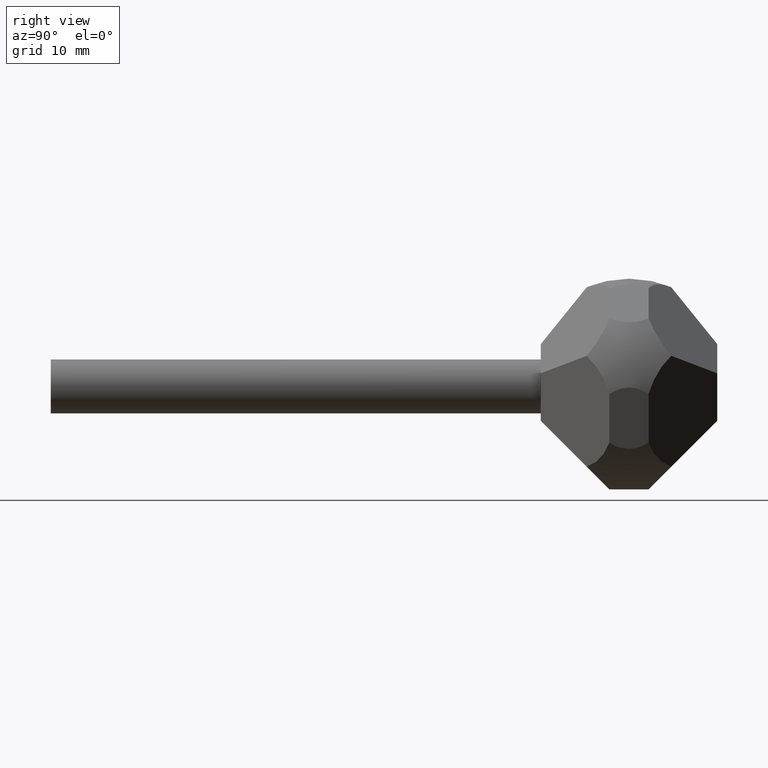
[diagram: clean part render]
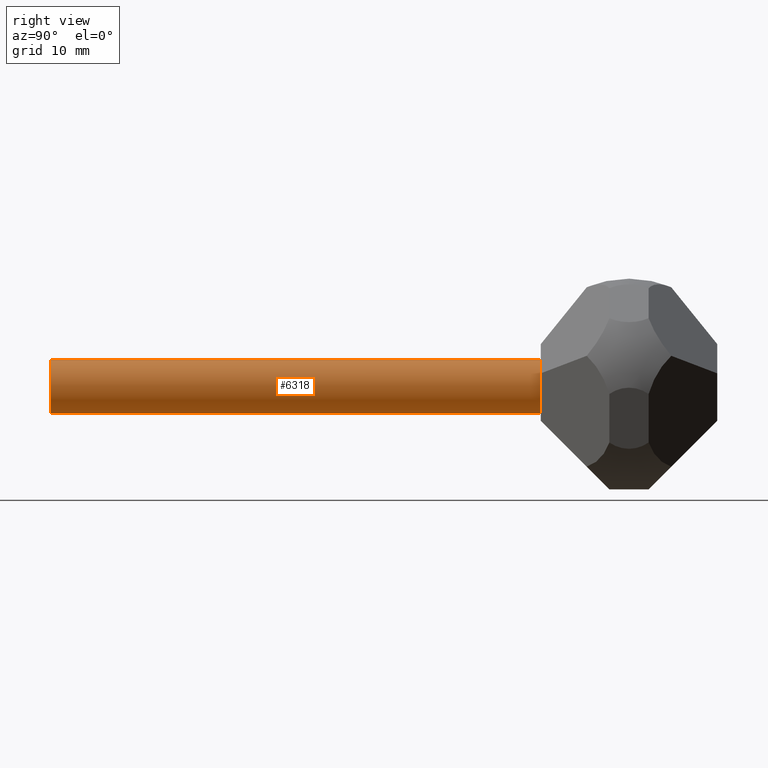
[diagram: same view with one face highlighted and labeled with its STEP entity id]
A machine part, right view. The second image highlights one B-rep face of the part: STEP entity #6318.
In plain terms, the highlighted cylindrical surface (bore or boss wall) has radius 2.75 mm, axis along (0, -1, 0).
Its self-contained STEP definition (entity closure, byte-faithful):
#381 = AXIS2_PLACEMENT_3D ( 'NONE', #8366, #2840, #9573 ) ;
#1084 = EDGE_CURVE ( 'NONE', #4359, #4359, #11865, .T. ) ;
#2038 = AXIS2_PLACEMENT_3D ( 'NONE', #6776, #6862, #6902 ) ;
#2599 = EDGE_CURVE ( 'NONE', #8677, #8677, #6498, .T. ) ;
#2730 = ORIENTED_EDGE ( 'NONE', *, *, #2599, .F. ) ;
#2831 = CARTESIAN_POINT ( 'NONE',  ( 0.000000000000000000, -59.00000000000000711, 0.000000000000000000 ) ) ;
#2840 = DIRECTION ( 'NONE',  ( 0.000000000000000000, -1.000000000000000000, 0.000000000000000000 ) ) ;
#4117 = CARTESIAN_POINT ( 'NONE',  ( 0.000000000000000000, -9.000000000000000000, -2.750000000000000000 ) ) ;
#4359 = VERTEX_POINT ( 'NONE', #4117 ) ;
#4900 = EDGE_LOOP ( 'NONE', ( #2730 ) ) ;
#5615 = DIRECTION ( 'NONE',  ( 0.000000000000000000, -1.000000000000000000, 0.000000000000000000 ) ) ;
#5844 = ORIENTED_EDGE ( 'NONE', *, *, #1084, .T. ) ;
#6318 = ADVANCED_FACE ( 'NONE', ( #7749, #9634 ), #8191, .T. ) ;
#6498 = CIRCLE ( 'NONE', #9380, 2.750000000000000000 ) ;
#6776 = CARTESIAN_POINT ( 'NONE',  ( 0.000000000000000000, -9.000000000000000000, 0.000000000000000000 ) ) ;
#6862 = DIRECTION ( 'NONE',  ( 0.000000000000000000, -1.000000000000000000, 0.000000000000000000 ) ) ;
#6902 = DIRECTION ( 'NONE',  ( 0.000000000000000000, 0.000000000000000000, -1.000000000000000000 ) ) ;
#7749 = FACE_OUTER_BOUND ( 'NONE', #11282, .T. ) ;
#8191 = CYLINDRICAL_SURFACE ( 'NONE', #381, 2.750000000000000000 ) ;
#8366 = CARTESIAN_POINT ( 'NONE',  ( 0.000000000000000000, 0.000000000000000000, 0.000000000000000000 ) ) ;
#8677 = VERTEX_POINT ( 'NONE', #9647 ) ;
#9252 = DIRECTION ( 'NONE',  ( 0.000000000000000000, 0.000000000000000000, -1.000000000000000000 ) ) ;
#9380 = AXIS2_PLACEMENT_3D ( 'NONE', #2831, #5615, #9252 ) ;
#9573 = DIRECTION ( 'NONE',  ( 0.000000000000000000, 0.000000000000000000, -1.000000000000000000 ) ) ;
#9634 = FACE_OUTER_BOUND ( 'NONE', #4900, .T. ) ;
#9647 = CARTESIAN_POINT ( 'NONE',  ( 0.000000000000000000, -59.00000000000000711, -2.750000000000000000 ) ) ;
#11282 = EDGE_LOOP ( 'NONE', ( #5844 ) ) ;
#11865 = CIRCLE ( 'NONE', #2038, 2.750000000000000000 ) ;